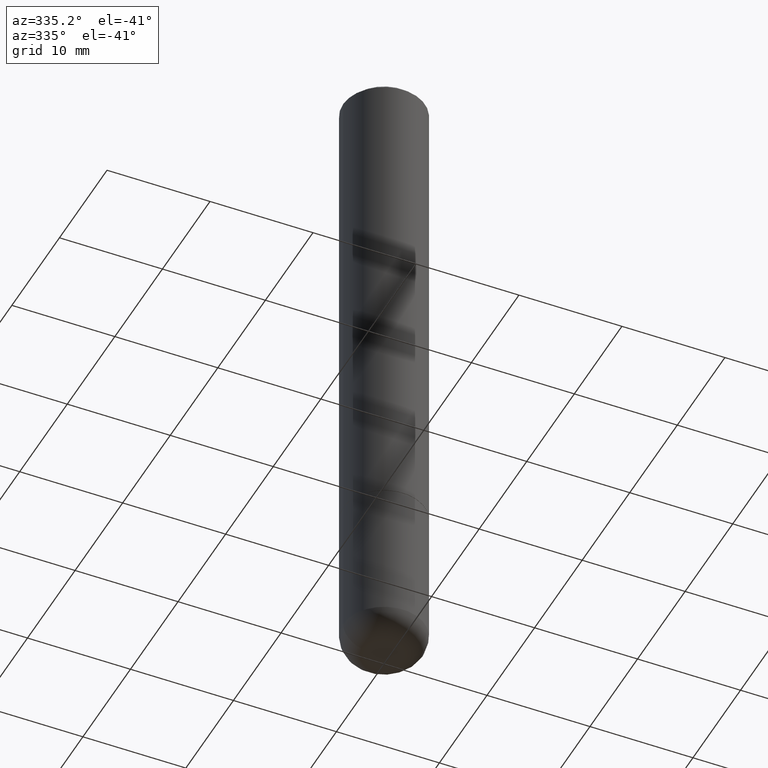
[diagram: clean part render]
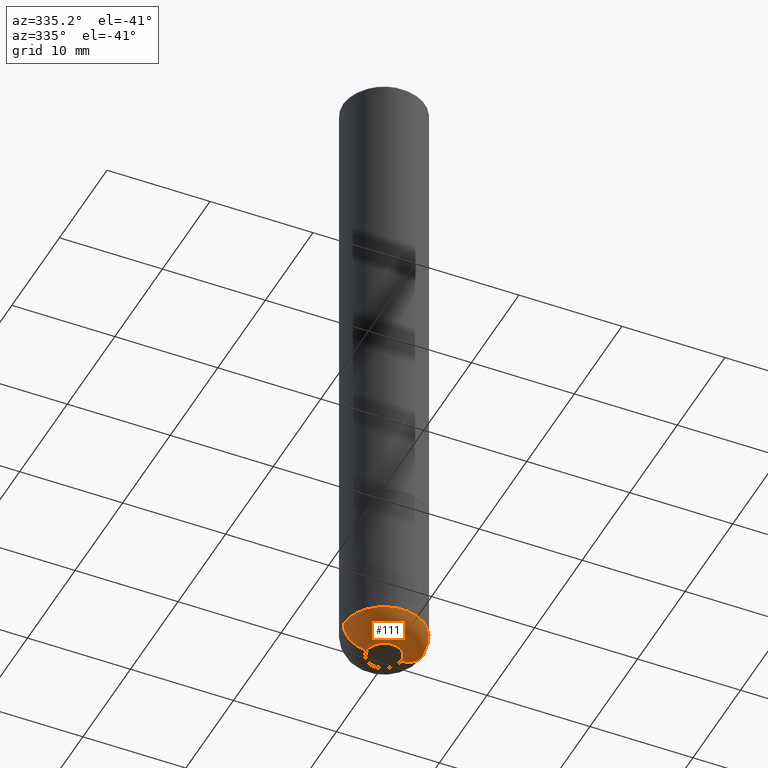
[diagram: same view with one face highlighted and labeled with its STEP entity id]
A machine part, auxiliary view. The second image highlights one B-rep face of the part: STEP entity #111.
In plain terms, the highlighted toroidal blend (fillet) surface has major radius 1.6828 mm and minor (blend) radius 2.286 mm.
Its self-contained STEP definition (entity closure, byte-faithful):
#9 = DIRECTION ( 'NONE',  ( -1.000000000000000000, 7.105427357601006592E-15, 0.000000000000000000 ) ) ;
#11 = AXIS2_PLACEMENT_3D ( 'NONE', #305, #25, #283 ) ;
#25 = DIRECTION ( 'NONE',  ( -6.982962677686266711E-15, -1.000000000000000000, 3.491481338843145583E-15 ) ) ;
#42 = EDGE_CURVE ( 'NONE', #409, #275, #299, .T. ) ;
#61 = EDGE_CURVE ( 'NONE', #170, #330, #346, .T. ) ;
#72 = DIRECTION ( 'NONE',  ( -2.445468806185136597E-29, 3.491481338843145583E-15, 1.000000000000000000 ) ) ;
#81 = CARTESIAN_POINT ( 'NONE',  ( 6.113672015462842613E-29, -8.728703347107864943E-15, -2.500000000000000000 ) ) ;
#82 = ORIENTED_EDGE ( 'NONE', *, *, #185, .T. ) ;
#111 = ADVANCED_FACE ( 'NONE', ( #259 ), #311, .T. ) ;
#128 = AXIS2_PLACEMENT_3D ( 'NONE', #150, #72, #285 ) ;
#131 = EDGE_CURVE ( 'NONE', #330, #275, #210, .T. ) ;
#139 = EDGE_LOOP ( 'NONE', ( #316, #82, #182, #209 ) ) ;
#150 = CARTESIAN_POINT ( 'NONE',  ( 5.893579822906179826E-29, -8.414470026611981678E-15, -2.410000000000000142 ) ) ;
#170 = VERTEX_POINT ( 'NONE', #191 ) ;
#182 = ORIENTED_EDGE ( 'NONE', *, *, #42, .T. ) ;
#185 = EDGE_CURVE ( 'NONE', #170, #409, #250, .T. ) ;
#191 = CARTESIAN_POINT ( 'NONE',  ( -0.06625000000000001721, -7.781107893326811349E-15, -2.500000000000000000 ) ) ;
#209 = ORIENTED_EDGE ( 'NONE', *, *, #131, .F. ) ;
#210 = CIRCLE ( 'NONE', #128, 0.1562500000000000000 ) ;
#224 = DIRECTION ( 'NONE',  ( -2.445468806185136597E-29, 3.491481338843145583E-15, 1.000000000000000000 ) ) ;
#250 = CIRCLE ( 'NONE', #412, 0.06625000000000001721 ) ;
#259 = FACE_OUTER_BOUND ( 'NONE', #139, .T. ) ;
#261 = DIRECTION ( 'NONE',  ( 7.105427357601001859E-15, 1.000000000000000000, -3.491481338843145583E-15 ) ) ;
#275 = VERTEX_POINT ( 'NONE', #313 ) ;
#283 = DIRECTION ( 'NONE',  ( 1.000000000000000000, -6.982962677686273810E-15, 0.000000000000000000 ) ) ;
#285 = DIRECTION ( 'NONE',  ( 1.000000000000000000, -6.982962677686262766E-15, 0.000000000000000000 ) ) ;
#299 = CIRCLE ( 'NONE', #11, 0.08999999999999992728 ) ;
#305 = CARTESIAN_POINT ( 'NONE',  ( 0.06625000000000001721, -8.877091304008696690E-15, -2.410000000000000142 ) ) ;
#307 = DIRECTION ( 'NONE',  ( 1.000000000000000000, -6.982962677686265922E-15, 4.883557194083112340E-29 ) ) ;
#311 = TOROIDAL_SURFACE ( 'NONE', #390, 0.06625000000000001721, 0.08999999999999992728 ) ;
#313 = CARTESIAN_POINT ( 'NONE',  ( 0.1562499999999999722, -9.505557945000458485E-15, -2.410000000000000142 ) ) ;
#316 = ORIENTED_EDGE ( 'NONE', *, *, #61, .F. ) ;
#323 = CARTESIAN_POINT ( 'NONE',  ( -0.06625000000000001721, -7.943735464170915873E-15, -2.410000000000000142 ) ) ;
#330 = VERTEX_POINT ( 'NONE', #410 ) ;
#336 = CARTESIAN_POINT ( 'NONE',  ( 0.06625000000000001721, -9.191324624504579954E-15, -2.500000000000000000 ) ) ;
#344 = DIRECTION ( 'NONE',  ( 1.000000000000000000, -6.982962677686268288E-15, 0.000000000000000000 ) ) ;
#346 = CIRCLE ( 'NONE', #356, 0.08999999999999992728 ) ;
#356 = AXIS2_PLACEMENT_3D ( 'NONE', #323, #261, #9 ) ;
#390 = AXIS2_PLACEMENT_3D ( 'NONE', #399, #224, #307 ) ;
#399 = CARTESIAN_POINT ( 'NONE',  ( 5.893579822906179826E-29, -8.414470026611981678E-15, -2.410000000000000142 ) ) ;
#404 = DIRECTION ( 'NONE',  ( -2.445468806185136597E-29, 3.491481338843145583E-15, 1.000000000000000000 ) ) ;
#409 = VERTEX_POINT ( 'NONE', #336 ) ;
#410 = CARTESIAN_POINT ( 'NONE',  ( -0.1562499999999999722, -7.304247001986825138E-15, -2.410000000000000142 ) ) ;
#412 = AXIS2_PLACEMENT_3D ( 'NONE', #81, #404, #344 ) ;